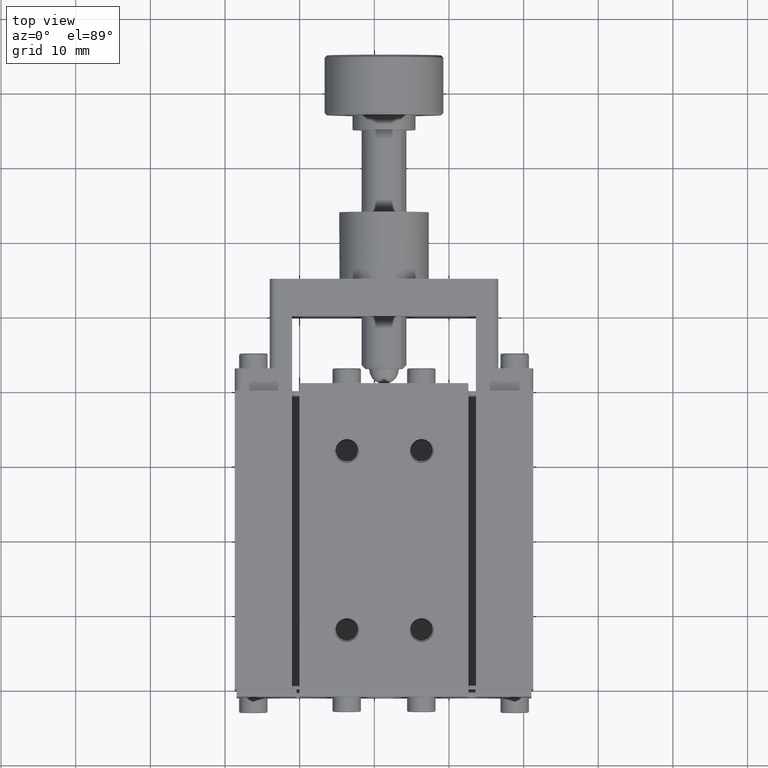
[diagram: clean part render]
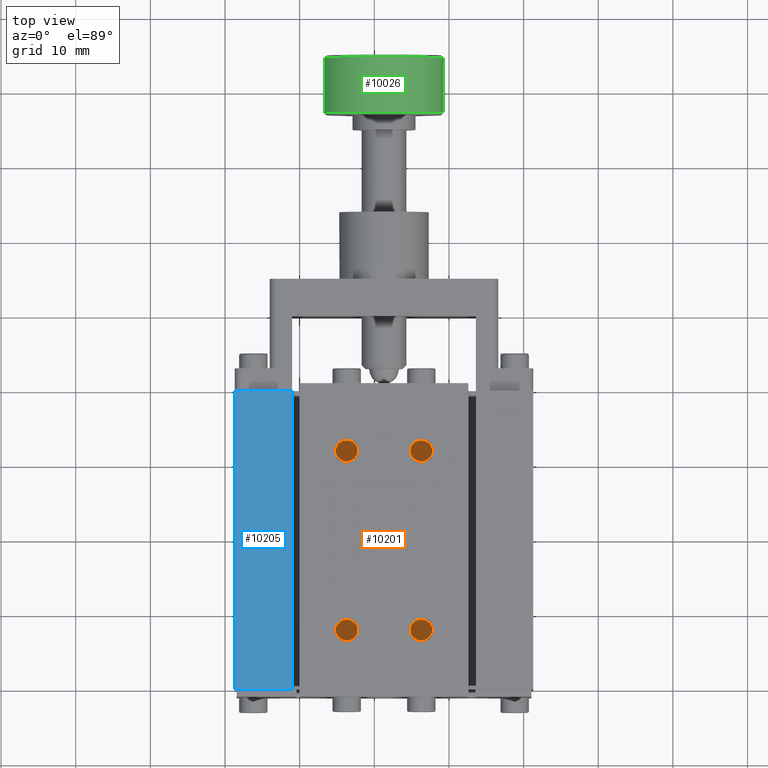
[diagram: same view with three faces highlighted in distinct colors, each labeled with its STEP entity id]
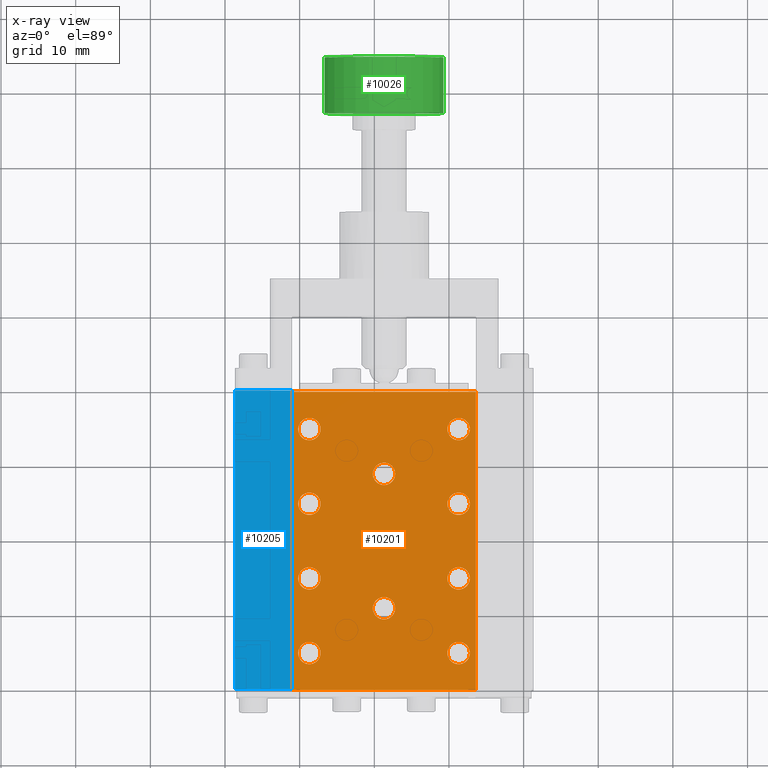
[diagram: x-ray of the same camera — body ghosted, the three highlighted faces saturated]
A machine part, top view with three faces highlighted in distinct colors.
The next image is the same camera in x-ray (body ghosted, the three faces saturated) — at least one of them is partly hidden behind the body in this view.
Their STEP definitions:

[orange] entity #10201 — the highlighted planar face has unit normal (0, 0, -1).
#441=FACE_BOUND('',#1792,.T.);
#442=FACE_BOUND('',#1793,.T.);
#443=FACE_BOUND('',#1794,.T.);
#444=FACE_BOUND('',#1795,.T.);
#445=FACE_BOUND('',#1796,.T.);
#446=FACE_BOUND('',#1797,.T.);
#447=FACE_BOUND('',#1798,.T.);
#448=FACE_BOUND('',#1799,.T.);
#449=FACE_BOUND('',#1800,.T.);
#450=FACE_BOUND('',#1801,.T.);
#745=PLANE('',#10927);
#1226=FACE_OUTER_BOUND('',#1791,.T.);
#1791=EDGE_LOOP('',(#8482,#8483,#8484,#8485,#8486,#8487));
#1792=EDGE_LOOP('',(#8488));
#1793=EDGE_LOOP('',(#8489));
#1794=EDGE_LOOP('',(#8490));
#1795=EDGE_LOOP('',(#8491));
#1796=EDGE_LOOP('',(#8492));
#1797=EDGE_LOOP('',(#8493));
#1798=EDGE_LOOP('',(#8494));
#1799=EDGE_LOOP('',(#8495));
#1800=EDGE_LOOP('',(#8496));
#1801=EDGE_LOOP('',(#8497));
#2503=LINE('',#16283,#3368);
#2508=LINE('',#16299,#3373);
#2514=LINE('',#16320,#3379);
#2647=LINE('',#17040,#3512);
#2649=LINE('',#17046,#3514);
#2652=LINE('',#17050,#3517);
#3368=VECTOR('',#12471,10.);
#3373=VECTOR('',#12486,10.);
#3379=VECTOR('',#12502,10.);
#3512=VECTOR('',#12953,10.);
#3514=VECTOR('',#12963,10.);
#3517=VECTOR('',#12968,10.);
#3932=CIRCLE('',#10890,1.5);
#3934=CIRCLE('',#10893,1.5);
#3936=CIRCLE('',#10896,1.5);
#3938=CIRCLE('',#10899,1.5);
#3940=CIRCLE('',#10902,1.5);
#3942=CIRCLE('',#10905,1.5);
#3944=CIRCLE('',#10908,1.5);
#3946=CIRCLE('',#10911,1.5);
#3948=CIRCLE('',#10914,1.5);
#3950=CIRCLE('',#10917,1.5);
#4617=VERTEX_POINT('',#16280);
#4618=VERTEX_POINT('',#16282);
#4623=VERTEX_POINT('',#16297);
#4624=VERTEX_POINT('',#16298);
#4633=VERTEX_POINT('',#16317);
#4634=VERTEX_POINT('',#16319);
#4730=VERTEX_POINT('',#16978);
#4732=VERTEX_POINT('',#16984);
#4734=VERTEX_POINT('',#16990);
#4736=VERTEX_POINT('',#16996);
#4738=VERTEX_POINT('',#17002);
#4740=VERTEX_POINT('',#17008);
#4742=VERTEX_POINT('',#17014);
#4744=VERTEX_POINT('',#17020);
#4746=VERTEX_POINT('',#17026);
#4748=VERTEX_POINT('',#17032);
#5812=EDGE_CURVE('',#4617,#4618,#2503,.T.);
#5819=EDGE_CURVE('',#4623,#4624,#2508,.T.);
#5829=EDGE_CURVE('',#4633,#4634,#2514,.T.);
#6023=EDGE_CURVE('',#4730,#4730,#3932,.T.);
#6026=EDGE_CURVE('',#4732,#4732,#3934,.T.);
#6029=EDGE_CURVE('',#4734,#4734,#3936,.T.);
#6032=EDGE_CURVE('',#4736,#4736,#3938,.T.);
#6035=EDGE_CURVE('',#4738,#4738,#3940,.T.);
#6038=EDGE_CURVE('',#4740,#4740,#3942,.T.);
#6041=EDGE_CURVE('',#4742,#4742,#3944,.T.);
#6044=EDGE_CURVE('',#4744,#4744,#3946,.T.);
#6047=EDGE_CURVE('',#4746,#4746,#3948,.T.);
#6050=EDGE_CURVE('',#4748,#4748,#3950,.T.);
#6052=EDGE_CURVE('',#4634,#4623,#2647,.T.);
#6054=EDGE_CURVE('',#4624,#4617,#2649,.T.);
#6057=EDGE_CURVE('',#4633,#4618,#2652,.T.);
#8482=ORIENTED_EDGE('',*,*,#5812,.F.);
#8483=ORIENTED_EDGE('',*,*,#6054,.F.);
#8484=ORIENTED_EDGE('',*,*,#5819,.F.);
#8485=ORIENTED_EDGE('',*,*,#6052,.F.);
#8486=ORIENTED_EDGE('',*,*,#5829,.F.);
#8487=ORIENTED_EDGE('',*,*,#6057,.T.);
#8488=ORIENTED_EDGE('',*,*,#6023,.T.);
#8489=ORIENTED_EDGE('',*,*,#6026,.T.);
#8490=ORIENTED_EDGE('',*,*,#6029,.T.);
#8491=ORIENTED_EDGE('',*,*,#6032,.T.);
#8492=ORIENTED_EDGE('',*,*,#6035,.T.);
#8493=ORIENTED_EDGE('',*,*,#6038,.T.);
#8494=ORIENTED_EDGE('',*,*,#6041,.T.);
#8495=ORIENTED_EDGE('',*,*,#6044,.T.);
#8496=ORIENTED_EDGE('',*,*,#6047,.T.);
#8497=ORIENTED_EDGE('',*,*,#6050,.T.);
#10201=ADVANCED_FACE('',(#1226,#441,#442,#443,#444,#445,#446,#447,#448,
#449,#450),#745,.F.);
#10890=AXIS2_PLACEMENT_3D('',#16980,#12879,#12880);
#10893=AXIS2_PLACEMENT_3D('',#16986,#12886,#12887);
#10896=AXIS2_PLACEMENT_3D('',#16992,#12893,#12894);
#10899=AXIS2_PLACEMENT_3D('',#16998,#12900,#12901);
#10902=AXIS2_PLACEMENT_3D('',#17004,#12907,#12908);
#10905=AXIS2_PLACEMENT_3D('',#17010,#12914,#12915);
#10908=AXIS2_PLACEMENT_3D('',#17016,#12921,#12922);
#10911=AXIS2_PLACEMENT_3D('',#17022,#12928,#12929);
#10914=AXIS2_PLACEMENT_3D('',#17028,#12935,#12936);
#10917=AXIS2_PLACEMENT_3D('',#17034,#12942,#12943);
#10927=AXIS2_PLACEMENT_3D('',#17051,#12969,#12970);
#12471=DIRECTION('',(1.,-5.55111512312578E-17,9.02620345223704E-17));
#12486=DIRECTION('',(-1.,-5.71916645986104E-18,-9.02620345223704E-17));
#12502=DIRECTION('',(-1.,-5.71916645986104E-18,-9.02620345223704E-17));
#12879=DIRECTION('center_axis',(9.02620345223704E-17,3.46826866409616E-62,
-1.));
#12880=DIRECTION('ref_axis',(1.,-5.55111512312578E-17,-9.93008144079619E-47));
#12886=DIRECTION('center_axis',(9.02620345223704E-17,3.46826866409616E-62,
-1.));
#12887=DIRECTION('ref_axis',(1.,-5.55111512312578E-17,-9.93008144079619E-47));
#12893=DIRECTION('center_axis',(9.02620345223704E-17,3.46826866409616E-62,
-1.));
#12894=DIRECTION('ref_axis',(1.,-5.55111512312578E-17,-9.93008144079619E-47));
#12900=DIRECTION('center_axis',(9.02620345223704E-17,3.46826866409616E-62,
-1.));
#12901=DIRECTION('ref_axis',(1.,-5.55111512312578E-17,-9.93008144079619E-47));
#12907=DIRECTION('center_axis',(9.02620345223704E-17,3.46826866409616E-62,
-1.));
#12908=DIRECTION('ref_axis',(1.,-5.55111512312578E-17,-9.93008144079619E-47));
#12914=DIRECTION('center_axis',(9.02620345223704E-17,3.46826866409616E-62,
-1.));
#12915=DIRECTION('ref_axis',(1.,-5.55111512312578E-17,-9.93008144079619E-47));
#12921=DIRECTION('center_axis',(9.02620345223704E-17,3.46826866409616E-62,
-1.));
#12922=DIRECTION('ref_axis',(1.,-5.55111512312578E-17,-9.93008144079619E-47));
#12928=DIRECTION('center_axis',(9.02620345223704E-17,3.46826866409616E-62,
-1.));
#12929=DIRECTION('ref_axis',(1.,-5.55111512312578E-17,-9.93008144079619E-47));
#12935=DIRECTION('center_axis',(9.02620345223704E-17,3.46826866409616E-62,
-1.));
#12936=DIRECTION('ref_axis',(1.,-5.55111512312578E-17,-9.93008144079619E-47));
#12942=DIRECTION('center_axis',(9.02620345223704E-17,3.46826866409616E-62,
-1.));
#12943=DIRECTION('ref_axis',(1.,-5.55111512312578E-17,-9.93008144079619E-47));
#12953=DIRECTION('',(-1.,-5.71916645986104E-18,-9.02620345223704E-17));
#12963=DIRECTION('',(0.,1.,3.46826866409616E-62));
#12968=DIRECTION('',(0.,1.,3.46826866409616E-62));
#12969=DIRECTION('center_axis',(9.02620345223704E-17,3.46826866409616E-62,
-1.));
#12970=DIRECTION('ref_axis',(-1.,5.55111512312578E-17,-9.02620345223704E-17));
#16280=CARTESIAN_POINT('',(-0.999999999999972,40.,-0.5));
#16282=CARTESIAN_POINT('',(23.6,40.,-0.499999999999998));
#16283=CARTESIAN_POINT('',(-4.84999999999997,40.,-0.500000000000002));
#16297=CARTESIAN_POINT('',(-0.449999999999988,3.55743199112989E-14,-0.500000000000001));
#16298=CARTESIAN_POINT('',(-0.999999999999972,3.55711743697459E-14,-0.5));
#16299=CARTESIAN_POINT('',(15.15,3.56635389080727E-14,-0.499999999999999));
#16317=CARTESIAN_POINT('',(23.6,3.57118658646585E-14,-0.499999999999998));
#16319=CARTESIAN_POINT('',(23.55,3.57115799063355E-14,-0.499999999999999));
#16320=CARTESIAN_POINT('',(15.15,3.56635389080727E-14,-0.499999999999999));
#16978=CARTESIAN_POINT('',(9.80000000000003,11.,-0.500000000000002));
#16980=CARTESIAN_POINT('Origin',(11.3,11.,-0.5));
#16984=CARTESIAN_POINT('',(9.80000000000003,29.,-0.500000000000002));
#16986=CARTESIAN_POINT('Origin',(11.3,29.,-0.5));
#16990=CARTESIAN_POINT('',(19.8,35.,-0.500000000000002));
#16992=CARTESIAN_POINT('Origin',(21.3,35.,-0.5));
#16996=CARTESIAN_POINT('',(19.8,25.,-0.500000000000002));
#16998=CARTESIAN_POINT('Origin',(21.3,25.,-0.5));
#17002=CARTESIAN_POINT('',(19.8,15.,-0.500000000000002));
#17004=CARTESIAN_POINT('Origin',(21.3,15.,-0.5));
#17008=CARTESIAN_POINT('',(19.8,5.00000000000003,-0.500000000000002));
#17010=CARTESIAN_POINT('Origin',(21.3,5.00000000000003,-0.5));
#17014=CARTESIAN_POINT('',(-0.199999999999972,5.00000000000004,-0.500000000000002));
#17016=CARTESIAN_POINT('Origin',(1.30000000000003,5.00000000000004,-0.5));
#17020=CARTESIAN_POINT('',(-0.199999999999971,15.,-0.500000000000002));
#17022=CARTESIAN_POINT('Origin',(1.30000000000003,15.,-0.5));
#17026=CARTESIAN_POINT('',(-0.199999999999971,25.,-0.500000000000002));
#17028=CARTESIAN_POINT('Origin',(1.30000000000003,25.,-0.5));
#17032=CARTESIAN_POINT('',(-0.19999999999997,35.,-0.500000000000002));
#17034=CARTESIAN_POINT('Origin',(1.30000000000003,35.,-0.5));
#17040=CARTESIAN_POINT('',(15.15,3.56635389080727E-14,-0.499999999999999));
#17046=CARTESIAN_POINT('',(-0.999999999999972,3.55711743697459E-14,-0.5));
#17050=CARTESIAN_POINT('',(23.6,3.57118658646585E-14,-0.499999999999998));
#17051=CARTESIAN_POINT('Origin',(-0.999999999999972,3.55711743697459E-14,
-0.5));

[blue] entity #10205 — the highlighted planar face has unit normal (0, -0, 1).
#749=PLANE('',#10931);
#1230=FACE_OUTER_BOUND('',#1817,.T.);
#1817=EDGE_LOOP('',(#8530,#8531,#8532,#8533));
#2500=LINE('',#16277,#3365);
#2561=LINE('',#16447,#3426);
#2650=LINE('',#17047,#3515);
#2655=LINE('',#17057,#3520);
#3365=VECTOR('',#12466,10.);
#3426=VECTOR('',#12629,10.);
#3515=VECTOR('',#12964,10.);
#3520=VECTOR('',#12979,10.);
#4615=VERTEX_POINT('',#16274);
#4616=VERTEX_POINT('',#16276);
#4673=VERTEX_POINT('',#16444);
#4674=VERTEX_POINT('',#16446);
#5809=EDGE_CURVE('',#4615,#4616,#2500,.T.);
#5896=EDGE_CURVE('',#4673,#4674,#2561,.T.);
#6055=EDGE_CURVE('',#4673,#4616,#2650,.T.);
#6060=EDGE_CURVE('',#4674,#4615,#2655,.T.);
#8530=ORIENTED_EDGE('',*,*,#6055,.T.);
#8531=ORIENTED_EDGE('',*,*,#5809,.F.);
#8532=ORIENTED_EDGE('',*,*,#6060,.F.);
#8533=ORIENTED_EDGE('',*,*,#5896,.F.);
#10205=ADVANCED_FACE('',(#1230),#749,.T.);
#10931=AXIS2_PLACEMENT_3D('',#17059,#12981,#12982);
#12466=DIRECTION('',(1.,-5.55111512312578E-17,-9.93008144079619E-47));
#12629=DIRECTION('',(-1.,-5.71916645986104E-18,9.93008144079619E-47));
#12964=DIRECTION('',(0.,1.,3.46826866409616E-62));
#12979=DIRECTION('',(5.55111512312578E-17,1.,2.91703841149741E-62));
#12981=DIRECTION('center_axis',(9.93008144079619E-47,-3.46826866409616E-62,
1.));
#12982=DIRECTION('ref_axis',(1.,-5.55111512312578E-17,-9.93008144079619E-47));
#16274=CARTESIAN_POINT('',(-8.69999999999997,40.,9.));
#16276=CARTESIAN_POINT('',(-0.999999999999972,40.,9.));
#16277=CARTESIAN_POINT('',(-8.69999999999997,40.,9.));
#16444=CARTESIAN_POINT('',(-0.999999999999972,3.55711743697459E-14,9.));
#16446=CARTESIAN_POINT('',(-8.69999999999997,3.5527136788005E-14,9.));
#16447=CARTESIAN_POINT('',(31.3,3.57559034463995E-14,9.));
#17047=CARTESIAN_POINT('',(-0.999999999999972,10.,9.));
#17057=CARTESIAN_POINT('',(-8.69999999999997,3.5527136788005E-14,9.));
#17059=CARTESIAN_POINT('Origin',(11.3,20.,9.));

[green] entity #10026 — the highlighted cylindrical surface (bore or boss wall) has radius 8 mm, axis along (0, -1, 0).
#203=B_SPLINE_CURVE_WITH_KNOTS('',3,(#15637,#15638,#15639,#15640,#15641,
#15642,#15643,#15644,#15645,#15646),.UNSPECIFIED.,.F.,.F.,(4,2,2,2,4),(0.118134903622493,
0.147668583303105,0.177202262983717,0.206736035114351,0.236269807244985),
 .UNSPECIFIED.);
#204=B_SPLINE_CURVE_WITH_KNOTS('',3,(#15648,#15649,#15650,#15651,#15652,
#15653,#15654,#15655,#15656,#15657,#15658,#15659,#15660,#15661,#15662,#15663,
#15664,#15665,#15666),.UNSPECIFIED.,.F.,.F.,(4,2,2,2,3,2,2,2,4),(0.354404710867478,
0.383938390548091,0.413472070228703,0.443005842359337,0.472539614489971,
0.502073386620605,0.531607158751239,0.561140838431851,0.590674518112464),
 .UNSPECIFIED.);
#205=B_SPLINE_CURVE_WITH_KNOTS('',3,(#15667,#15668,#15669,#15670,#15671,
#15672,#15673,#15674,#15675,#15676),.UNSPECIFIED.,.F.,.F.,(4,2,2,2,4),(0.236269807244985,
0.265803579375619,0.295337351506253,0.324871031186866,0.354404710867478),
 .UNSPECIFIED.);
#208=B_SPLINE_CURVE_WITH_KNOTS('',3,(#15719,#15720,#15721,#15722,#15723,
#15724,#15725,#15726,#15727,#15728),.UNSPECIFIED.,.F.,.F.,(4,2,2,2,4),(0.118134903622493,
0.147668583303105,0.177202262983718,0.206736035114352,0.236269807244986),
 .UNSPECIFIED.);
#209=B_SPLINE_CURVE_WITH_KNOTS('',3,(#15730,#15731,#15732,#15733,#15734,
#15735,#15736,#15737,#15738,#15739,#15740,#15741,#15742,#15743,#15744,#15745,
#15746,#15747,#15748),.UNSPECIFIED.,.F.,.F.,(4,2,2,2,3,2,2,2,4),(0.354404710867478,
0.383938390548091,0.413472070228703,0.443005842359337,0.472539614489971,
0.502073386620605,0.531607158751239,0.561140838431851,0.590674518112464),
 .UNSPECIFIED.);
#210=B_SPLINE_CURVE_WITH_KNOTS('',3,(#15749,#15750,#15751,#15752,#15753,
#15754,#15755,#15756,#15757,#15758),.UNSPECIFIED.,.F.,.F.,(4,2,2,2,4),(0.236269807244986,
0.265803579375619,0.295337351506253,0.324871031186866,0.354404710867478),
 .UNSPECIFIED.);
#318=CYLINDRICAL_SURFACE('',#10578,8.);
#419=FACE_BOUND('',#1595,.T.);
#1051=FACE_OUTER_BOUND('',#1594,.T.);
#1594=EDGE_LOOP('',(#7597,#7598,#7599,#7600,#7601,#7602,#7603,#7604,#7605));
#1595=EDGE_LOOP('',(#7606,#7607,#7608));
#2369=LINE('',#15825,#3234);
#2370=LINE('',#15826,#3235);
#3234=VECTOR('',#11991,8.);
#3235=VECTOR('',#11992,8.);
#3776=CIRCLE('',#10577,8.);
#3777=CIRCLE('',#10579,8.);
#4450=VERTEX_POINT('',#15635);
#4451=VERTEX_POINT('',#15636);
#4452=VERTEX_POINT('',#15647);
#4455=VERTEX_POINT('',#15717);
#4456=VERTEX_POINT('',#15718);
#4457=VERTEX_POINT('',#15729);
#4466=VERTEX_POINT('',#15819);
#4467=VERTEX_POINT('',#15823);
#5562=EDGE_CURVE('',#4450,#4451,#203,.T.);
#5563=EDGE_CURVE('',#4452,#4450,#204,.T.);
#5564=EDGE_CURVE('',#4451,#4452,#205,.T.);
#5568=EDGE_CURVE('',#4455,#4456,#208,.T.);
#5569=EDGE_CURVE('',#4457,#4455,#209,.T.);
#5570=EDGE_CURVE('',#4456,#4457,#210,.T.);
#5584=EDGE_CURVE('',#4466,#4466,#3776,.T.);
#5585=EDGE_CURVE('',#4467,#4467,#3777,.T.);
#5586=EDGE_CURVE('',#4467,#4457,#2369,.T.);
#5587=EDGE_CURVE('',#4455,#4466,#2370,.T.);
#7597=ORIENTED_EDGE('',*,*,#5585,.F.);
#7598=ORIENTED_EDGE('',*,*,#5586,.T.);
#7599=ORIENTED_EDGE('',*,*,#5569,.T.);
#7600=ORIENTED_EDGE('',*,*,#5587,.T.);
#7601=ORIENTED_EDGE('',*,*,#5584,.F.);
#7602=ORIENTED_EDGE('',*,*,#5587,.F.);
#7603=ORIENTED_EDGE('',*,*,#5568,.T.);
#7604=ORIENTED_EDGE('',*,*,#5570,.T.);
#7605=ORIENTED_EDGE('',*,*,#5586,.F.);
#7606=ORIENTED_EDGE('',*,*,#5562,.T.);
#7607=ORIENTED_EDGE('',*,*,#5564,.T.);
#7608=ORIENTED_EDGE('',*,*,#5563,.T.);
#10026=ADVANCED_FACE('',(#1051,#419),#318,.T.);
#10577=AXIS2_PLACEMENT_3D('',#15821,#11985,#11986);
#10578=AXIS2_PLACEMENT_3D('',#15822,#11987,#11988);
#10579=AXIS2_PLACEMENT_3D('',#15824,#11989,#11990);
#11985=DIRECTION('center_axis',(-3.19071304327182E-16,1.,-2.23250039632499E-16));
#11986=DIRECTION('ref_axis',(-0.475758637268262,4.45644199117022E-17,0.879575874535362));
#11987=DIRECTION('center_axis',(3.19071304327182E-16,-1.,2.23250039632499E-16));
#11988=DIRECTION('ref_axis',(-0.475758637268262,4.45644199117022E-17,0.879575874535362));
#11989=DIRECTION('center_axis',(3.19071304327182E-16,-1.,2.23250039632499E-16));
#11990=DIRECTION('ref_axis',(-0.475758637268262,4.45644199117022E-17,0.879575874535362));
#11991=DIRECTION('',(-3.19071304327182E-16,1.,-2.23250039632499E-16));
#11992=DIRECTION('',(-3.19071304327182E-16,1.,-2.23250039632499E-16));
#15635=CARTESIAN_POINT('',(4.26339300371705,79.2164999999999,-1.30606909814607));
#15636=CARTESIAN_POINT('',(4.66997791028868,79.9999999999999,-1.97691937496538));
#15637=CARTESIAN_POINT('Ctrl Pts',(4.26339300371705,79.2164999999999,-1.30606909814607));
#15638=CARTESIAN_POINT('Ctrl Pts',(4.3102293477116,79.2164999999999,-1.39265947192381));
#15639=CARTESIAN_POINT('Ctrl Pts',(4.36192918088537,79.2361872881216,-1.48403069408962));
#15640=CARTESIAN_POINT('Ctrl Pts',(4.46012934127182,79.3161660295318,-1.65036102460336));
#15641=CARTESIAN_POINT('Ctrl Pts',(4.50654177528703,79.3764539994165,-1.72537368345562));
#15642=CARTESIAN_POINT('Ctrl Pts',(4.58118946143476,79.5155098921087,-1.84309134062765));
#15643=CARTESIAN_POINT('Ctrl Pts',(4.61439831167455,79.6035702379789,-1.8936707211004));
#15644=CARTESIAN_POINT('Ctrl Pts',(4.65883991463302,79.796589638872,-1.96056107094415));
#15645=CARTESIAN_POINT('Ctrl Pts',(4.66997791028868,79.9015540928978,-1.97691937496538));
#15646=CARTESIAN_POINT('Ctrl Pts',(4.66997791028868,79.9999999999999,-1.97691937496538));
#15647=CARTESIAN_POINT('',(4.26339300371705,80.7834999999999,-1.30606909814607));
#15648=CARTESIAN_POINT('Ctrl Pts',(4.26339300371705,80.7834999999999,-1.30606909814607));
#15649=CARTESIAN_POINT('Ctrl Pts',(4.21655665972249,80.7834999999999,-1.21947872436833));
#15650=CARTESIAN_POINT('Ctrl Pts',(4.16838089625429,80.7638127118782,-1.12620134873776));
#15651=CARTESIAN_POINT('Ctrl Pts',(4.08291945834598,80.683833970468,-0.952980700489985));
#15652=CARTESIAN_POINT('Ctrl Pts',(4.04554086119377,80.6235460005833,-0.873081679881254));
#15653=CARTESIAN_POINT('Ctrl Pts',(3.98787446331876,80.4844901078911,-0.746178920205184));
#15654=CARTESIAN_POINT('Ctrl Pts',(3.96371843027383,80.396429762021,-0.690702911599769));
#15655=CARTESIAN_POINT('Ctrl Pts',(3.932059000015,80.2034103611279,-0.61689874199246));
#15656=CARTESIAN_POINT('Ctrl Pts',(3.92446412568931,80.098445907102,-0.598623979568469));
#15657=CARTESIAN_POINT('Ctrl Pts',(3.92446412568931,79.9999999999999,-0.598623979568469));
#15658=CARTESIAN_POINT('Ctrl Pts',(3.92446412568931,79.9015540928978,-0.598623979568469));
#15659=CARTESIAN_POINT('Ctrl Pts',(3.932059000015,79.796589638872,-0.61689874199246));
#15660=CARTESIAN_POINT('Ctrl Pts',(3.96371843027383,79.6035702379789,-0.690702911599768));
#15661=CARTESIAN_POINT('Ctrl Pts',(3.98787446331876,79.5155098921087,-0.746178920205184));
#15662=CARTESIAN_POINT('Ctrl Pts',(4.04554086119378,79.3764539994165,-0.873081679881254));
#15663=CARTESIAN_POINT('Ctrl Pts',(4.08291945834598,79.3161660295318,-0.952980700489985));
#15664=CARTESIAN_POINT('Ctrl Pts',(4.16838089625429,79.2361872881216,-1.12620134873776));
#15665=CARTESIAN_POINT('Ctrl Pts',(4.21655665972249,79.2164999999999,-1.21947872436833));
#15666=CARTESIAN_POINT('Ctrl Pts',(4.26339300371705,79.2164999999999,-1.30606909814607));
#15667=CARTESIAN_POINT('Ctrl Pts',(4.66997791028868,79.9999999999999,-1.97691937496538));
#15668=CARTESIAN_POINT('Ctrl Pts',(4.66997791028868,80.098445907102,-1.97691937496538));
#15669=CARTESIAN_POINT('Ctrl Pts',(4.65883991463302,80.2034103611279,-1.96056107094415));
#15670=CARTESIAN_POINT('Ctrl Pts',(4.61439831167455,80.396429762021,-1.8936707211004));
#15671=CARTESIAN_POINT('Ctrl Pts',(4.58118946143476,80.4844901078911,-1.84309134062765));
#15672=CARTESIAN_POINT('Ctrl Pts',(4.50654177528703,80.6235460005833,-1.72537368345562));
#15673=CARTESIAN_POINT('Ctrl Pts',(4.46012934127182,80.683833970468,-1.65036102460336));
#15674=CARTESIAN_POINT('Ctrl Pts',(4.36192918088537,80.7638127118782,-1.48403069408962));
#15675=CARTESIAN_POINT('Ctrl Pts',(4.3102293477116,80.7834999999999,-1.3926594719238));
#15676=CARTESIAN_POINT('Ctrl Pts',(4.26339300371705,80.7834999999999,-1.30606909814607));
#15717=CARTESIAN_POINT('',(15.106069098146,80.7834999999999,-4.53660699628286));
#15718=CARTESIAN_POINT('',(14.3986239795684,79.9999999999999,-4.8755358743106));
#15719=CARTESIAN_POINT('Ctrl Pts',(15.106069098146,80.7834999999999,-4.53660699628286));
#15720=CARTESIAN_POINT('Ctrl Pts',(15.0194787243683,80.7834999999999,-4.58344334027741));
#15721=CARTESIAN_POINT('Ctrl Pts',(14.9262013487377,80.7638127118782,-4.63161910374562));
#15722=CARTESIAN_POINT('Ctrl Pts',(14.75298070049,80.683833970468,-4.71708054165393));
#15723=CARTESIAN_POINT('Ctrl Pts',(14.6730816798812,80.6235460005833,-4.75445913880613));
#15724=CARTESIAN_POINT('Ctrl Pts',(14.5461789202052,80.4844901078911,-4.81212553668114));
#15725=CARTESIAN_POINT('Ctrl Pts',(14.4907029115997,80.396429762021,-4.83628156972608));
#15726=CARTESIAN_POINT('Ctrl Pts',(14.4168987419924,80.2034103611279,-4.86794099998491));
#15727=CARTESIAN_POINT('Ctrl Pts',(14.3986239795684,80.098445907102,-4.8755358743106));
#15728=CARTESIAN_POINT('Ctrl Pts',(14.3986239795684,79.9999999999999,-4.8755358743106));
#15729=CARTESIAN_POINT('',(15.106069098146,79.2164999999999,-4.53660699628286));
#15730=CARTESIAN_POINT('Ctrl Pts',(15.106069098146,79.2164999999999,-4.53660699628286));
#15731=CARTESIAN_POINT('Ctrl Pts',(15.1926594719238,79.2164999999999,-4.48977065228831));
#15732=CARTESIAN_POINT('Ctrl Pts',(15.2840306940896,79.2361872881216,-4.43807081911454));
#15733=CARTESIAN_POINT('Ctrl Pts',(15.4503610246033,79.3161660295318,-4.33987065872808));
#15734=CARTESIAN_POINT('Ctrl Pts',(15.5253736834556,79.3764539994165,-4.29345822471288));
#15735=CARTESIAN_POINT('Ctrl Pts',(15.6430913406276,79.5155098921087,-4.21881053856515));
#15736=CARTESIAN_POINT('Ctrl Pts',(15.6936707211004,79.6035702379789,-4.18560168832535));
#15737=CARTESIAN_POINT('Ctrl Pts',(15.7605610709441,79.796589638872,-4.14116008536689));
#15738=CARTESIAN_POINT('Ctrl Pts',(15.7769193749654,79.9015540928978,-4.13002208971123));
#15739=CARTESIAN_POINT('Ctrl Pts',(15.7769193749654,79.9999999999999,-4.13002208971123));
#15740=CARTESIAN_POINT('Ctrl Pts',(15.7769193749654,80.098445907102,-4.13002208971123));
#15741=CARTESIAN_POINT('Ctrl Pts',(15.7605610709441,80.2034103611279,-4.14116008536689));
#15742=CARTESIAN_POINT('Ctrl Pts',(15.6936707211004,80.396429762021,-4.18560168832535));
#15743=CARTESIAN_POINT('Ctrl Pts',(15.6430913406276,80.4844901078911,-4.21881053856515));
#15744=CARTESIAN_POINT('Ctrl Pts',(15.5253736834556,80.6235460005833,-4.29345822471288));
#15745=CARTESIAN_POINT('Ctrl Pts',(15.4503610246033,80.683833970468,-4.33987065872808));
#15746=CARTESIAN_POINT('Ctrl Pts',(15.2840306940896,80.7638127118782,-4.43807081911454));
#15747=CARTESIAN_POINT('Ctrl Pts',(15.1926594719238,80.7834999999999,-4.48977065228831));
#15748=CARTESIAN_POINT('Ctrl Pts',(15.106069098146,80.7834999999999,-4.53660699628286));
#15749=CARTESIAN_POINT('Ctrl Pts',(14.3986239795684,79.9999999999999,-4.8755358743106));
#15750=CARTESIAN_POINT('Ctrl Pts',(14.3986239795684,79.9015540928978,-4.8755358743106));
#15751=CARTESIAN_POINT('Ctrl Pts',(14.4168987419924,79.796589638872,-4.86794099998491));
#15752=CARTESIAN_POINT('Ctrl Pts',(14.4907029115997,79.6035702379789,-4.83628156972608));
#15753=CARTESIAN_POINT('Ctrl Pts',(14.5461789202052,79.5155098921087,-4.81212553668114));
#15754=CARTESIAN_POINT('Ctrl Pts',(14.6730816798812,79.3764539994165,-4.75445913880613));
#15755=CARTESIAN_POINT('Ctrl Pts',(14.75298070049,79.3161660295318,-4.71708054165393));
#15756=CARTESIAN_POINT('Ctrl Pts',(14.9262013487377,79.2361872881216,-4.63161910374562));
#15757=CARTESIAN_POINT('Ctrl Pts',(15.0194787243683,79.2164999999999,-4.58344334027741));
#15758=CARTESIAN_POINT('Ctrl Pts',(15.106069098146,79.2164999999999,-4.53660699628286));
#15819=CARTESIAN_POINT('',(15.106069098146,84.6999999999999,-4.53660699628286));
#15821=CARTESIAN_POINT('Origin',(11.2999999999999,84.6999999999999,2.50000000000003));
#15822=CARTESIAN_POINT('Origin',(11.2999999999999,84.9999999999999,2.50000000000003));
#15823=CARTESIAN_POINT('',(15.106069098146,77.2999999999999,-4.53660699628286));
#15824=CARTESIAN_POINT('Origin',(11.2999999999999,77.2999999999999,2.50000000000003));
#15825=CARTESIAN_POINT('',(15.106069098146,84.9999999999999,-4.53660699628286));
#15826=CARTESIAN_POINT('',(15.106069098146,84.9999999999999,-4.53660699628286));